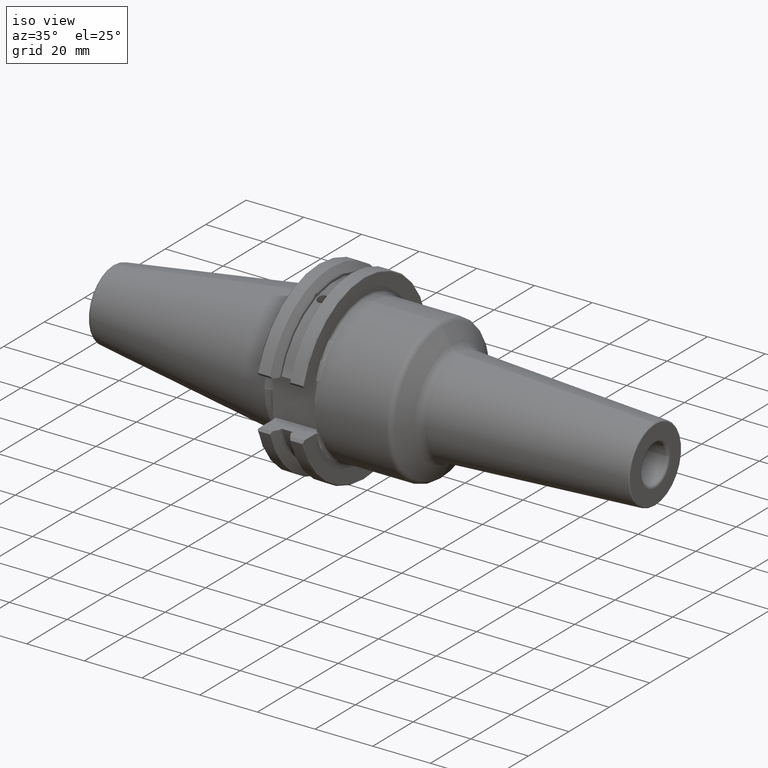
[diagram: clean part render]
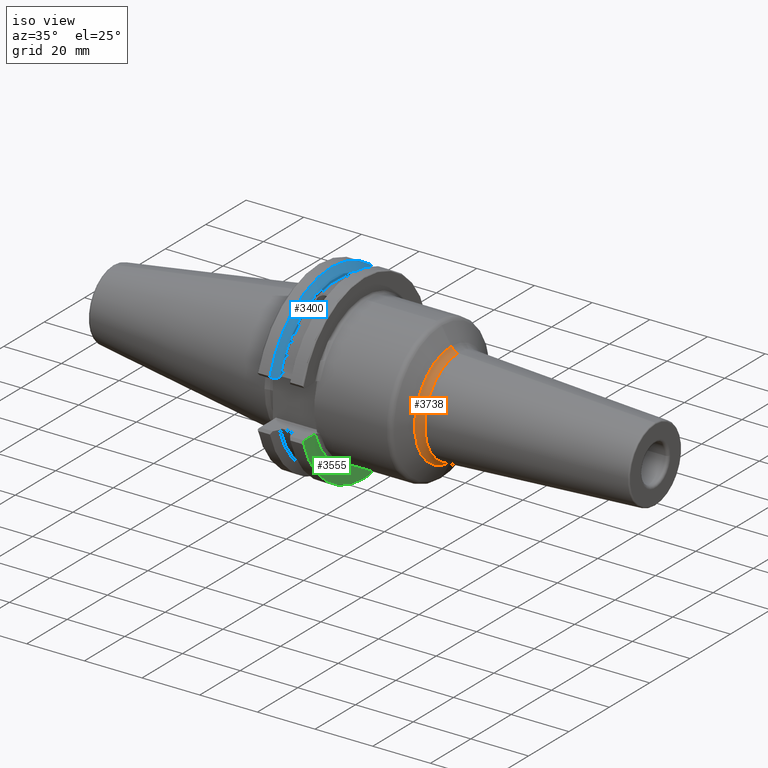
[diagram: same view with three faces highlighted in distinct colors, each labeled with its STEP entity id]
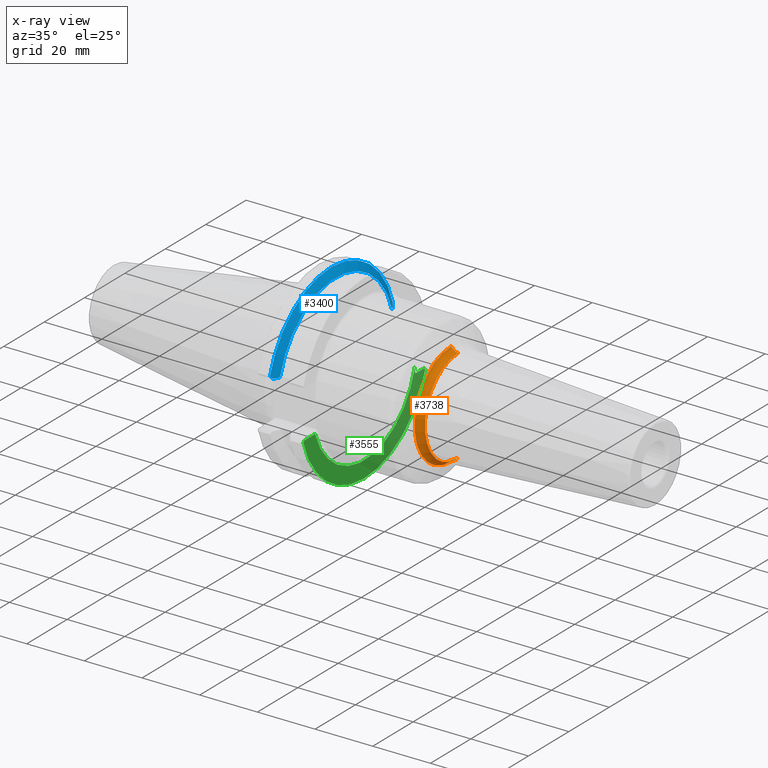
[diagram: x-ray of the same camera — body ghosted, the three highlighted faces saturated]
A machine part, iso view with three faces highlighted in distinct colors.
The next image is the same camera in x-ray (body ghosted, the three faces saturated) — at least one of them is partly hidden behind the body in this view.
Their STEP definitions:

[orange] entity #3738 — the highlighted toroidal blend (fillet) surface has major radius 19.5792 mm and minor (blend) radius 3 mm.
#1218=CARTESIAN_POINT('',(5.178364266190E1,-1.409816707820E-12,
-1.957918483686E1));
#1219=DIRECTION('',(0.E0,1.E0,-7.200837148780E-14));
#1220=DIRECTION('',(-8.660254037845E-1,3.600418574389E-14,4.999999999999E-1));
#1221=AXIS2_PLACEMENT_3D('',#1218,#1219,#1220);
#1223=CARTESIAN_POINT('',(5.178364266190E1,1.407540750620E-12,
1.957918483686E1));
#1224=DIRECTION('',(0.E0,-1.E0,7.189041029143E-14));
#1225=DIRECTION('',(-8.660254037845E-1,-3.594520514571E-14,-4.999999999999E-1));
#1226=AXIS2_PLACEMENT_3D('',#1223,#1224,#1225);
#1228=CARTESIAN_POINT('',(4.918556645054E1,0.E0,0.E0));
#1229=DIRECTION('',(1.E0,0.E0,0.E0));
#1230=DIRECTION('',(0.E0,0.E0,1.E0));
#1231=AXIS2_PLACEMENT_3D('',#1228,#1229,#1230);
#1255=CARTESIAN_POINT('',(5.162663479317E1,0.E0,0.E0));
#1256=DIRECTION('',(1.E0,0.E0,0.E0));
#1257=DIRECTION('',(0.E0,0.E0,1.E0));
#1258=AXIS2_PLACEMENT_3D('',#1255,#1256,#1257);
#2462=CARTESIAN_POINT('',(4.918556645054E1,0.E0,1.807918483686E1));
#2463=CARTESIAN_POINT('',(4.918556645054E1,0.E0,-1.807918483686E1));
#2464=VERTEX_POINT('',#2462);
#2465=VERTEX_POINT('',#2463);
#2466=CARTESIAN_POINT('',(5.162663479317E1,0.E0,1.658329623260E1));
#2467=CARTESIAN_POINT('',(5.162663479317E1,0.E0,-1.658329623260E1));
#2468=VERTEX_POINT('',#2466);
#2469=VERTEX_POINT('',#2467);
#3725=CARTESIAN_POINT('',(5.178364266190E1,0.E0,0.E0));
#3726=DIRECTION('',(1.E0,0.E0,0.E0));
#3727=DIRECTION('',(0.E0,1.660637060092E-2,9.998621047202E-1));
#3728=AXIS2_PLACEMENT_3D('',#3725,#3726,#3727);
#3729=TOROIDAL_SURFACE('',#3728,1.957918483686E1,3.E0);
#3731=ORIENTED_EDGE('',*,*,#3730,.F.);
#3732=ORIENTED_EDGE('',*,*,#3720,.T.);
#3734=ORIENTED_EDGE('',*,*,#3733,.T.);
#3735=ORIENTED_EDGE('',*,*,#3716,.F.);
#3736=EDGE_LOOP('',(#3731,#3732,#3734,#3735));
#3737=FACE_OUTER_BOUND('',#3736,.F.);
#3738=ADVANCED_FACE('',(#3737),#3729,.F.);
#1222=CIRCLE('',#1221,3.E0);
#1227=CIRCLE('',#1226,3.E0);
#1232=CIRCLE('',#1231,1.807918483686E1);
#1259=CIRCLE('',#1258,1.658329623260E1);
#3716=EDGE_CURVE('',#2465,#2469,#1222,.T.);
#3720=EDGE_CURVE('',#2464,#2468,#1227,.T.);
#3730=EDGE_CURVE('',#2464,#2465,#1232,.T.);
#3733=EDGE_CURVE('',#2468,#2469,#1259,.T.);

[blue] entity #3400 — the highlighted conical surface has half-angle 60 deg.
#907=CARTESIAN_POINT('',(9.2191E0,-1.071020574925E1,2.690618531059E1));
#908=CARTESIAN_POINT('',(9.184596827446E0,-1.065939318046E1,2.699073343701E1));
#909=CARTESIAN_POINT('',(9.125439677838E0,-1.054902969653E1,2.714425266799E1));
#910=CARTESIAN_POINT('',(9.066208567552E0,-1.036274638272E1,2.732566638321E1));
#911=CARTESIAN_POINT('',(9.034989583537E0,-1.015597707604E1,2.746084399783E1));
#912=CARTESIAN_POINT('',(9.031672173618E0,-9.938203587957E0,2.754647583445E1));
#913=CARTESIAN_POINT('',(9.052026122412E0,-9.721477302138E0,2.758628796179E1));
#914=CARTESIAN_POINT('',(9.092027819861E0,-9.505150638062E0,2.758827408227E1));
#915=CARTESIAN_POINT('',(9.149180862350E0,-9.290791383580E0,2.755671497778E1));
#916=CARTESIAN_POINT('',(9.194707745176E0,-9.156407639833E0,2.751841880522E1));
#917=CARTESIAN_POINT('',(9.2191E0,-9.090468942703E0,2.749572129551E1));
#919=CARTESIAN_POINT('',(9.2191E0,0.E0,0.E0));
#920=DIRECTION('',(1.E0,0.E0,0.E0));
#921=DIRECTION('',(0.E0,-3.698342240179E-1,9.290977595200E-1));
#922=AXIS2_PLACEMENT_3D('',#919,#920,#921);
#924=CARTESIAN_POINT('',(9.2191E0,-2.777724275660E1,8.19E0));
#925=CARTESIAN_POINT('',(9.100004436185E0,-2.799230184175E1,8.19E0));
#926=CARTESIAN_POINT('',(8.860060979749E0,-2.842518482368E1,8.19E0));
#927=CARTESIAN_POINT('',(8.494908006267E0,-2.908279917371E1,8.19E0));
#928=CARTESIAN_POINT('',(8.247976093806E0,-2.952676307978E1,8.19E0));
#929=CARTESIAN_POINT('',(8.123639020472E0,-2.975013277281E1,8.19E0));
#931=CARTESIAN_POINT('',(7.607990865E0,-3.042082819764E1,9.090418679549E0));
#932=CARTESIAN_POINT('',(7.695827202243E0,-3.030750581618E1,8.938281680694E0));
#933=CARTESIAN_POINT('',(7.869605602884E0,-3.008240105924E1,8.636075164136E0));
#934=CARTESIAN_POINT('',(8.039593216595E0,-2.986037569154E1,8.338002773885E0));
#935=CARTESIAN_POINT('',(8.123639020472E0,-2.975013277281E1,8.19E0));
#937=CARTESIAN_POINT('',(7.607990865E0,0.E0,0.E0));
#938=DIRECTION('',(-1.E0,0.E0,0.E0));
#939=DIRECTION('',(0.E0,-9.581363211856E-1,2.863123993559E-1));
#940=AXIS2_PLACEMENT_3D('',#937,#938,#939);
#942=CARTESIAN_POINT('',(8.123639020472E0,2.975013277281E1,8.19E0));
#943=CARTESIAN_POINT('',(8.039100933267E0,2.986102141980E1,8.338869673775E0));
#944=CARTESIAN_POINT('',(7.868614064527E0,3.008369062664E1,8.637806427737E0));
#945=CARTESIAN_POINT('',(7.695328138794E0,3.030814968477E1,8.939146083944E0));
#946=CARTESIAN_POINT('',(7.607990865E0,3.042082819764E1,9.090418679549E0));
#948=CARTESIAN_POINT('',(8.123639020472E0,2.975013277281E1,8.19E0));
#949=CARTESIAN_POINT('',(8.247937579506E0,2.952683227014E1,8.19E0));
#950=CARTESIAN_POINT('',(8.494818240530E0,2.908296065829E1,8.19E0));
#951=CARTESIAN_POINT('',(8.859971936954E0,2.842534536140E1,8.19E0));
#952=CARTESIAN_POINT('',(9.099966323800E0,2.799237066391E1,8.19E0));
#953=CARTESIAN_POINT('',(9.2191E0,2.777724275660E1,8.19E0));
#955=CARTESIAN_POINT('',(9.2191E0,0.E0,0.E0));
#956=DIRECTION('',(1.E0,0.E0,0.E0));
#957=DIRECTION('',(0.E0,9.591762530767E-1,2.828089735736E-1));
#958=AXIS2_PLACEMENT_3D('',#955,#956,#957);
#2074=CARTESIAN_POINT('',(9.2191E0,2.777724275660E1,8.19E0));
#2076=VERTEX_POINT('',#2074);
#2090=CARTESIAN_POINT('',(9.2191E0,-2.777724275660E1,8.19E0));
#2092=VERTEX_POINT('',#2090);
#2106=VERTEX_POINT('',#942);
#2107=VERTEX_POINT('',#946);
#2116=VERTEX_POINT('',#931);
#2117=VERTEX_POINT('',#935);
#2344=VERTEX_POINT('',#907);
#2345=VERTEX_POINT('',#917);
#3378=CARTESIAN_POINT('',(8.413545432500E0,0.E0,0.E0));
#3379=DIRECTION('',(-1.E0,0.E0,0.E0));
#3380=DIRECTION('',(0.E0,0.E0,-1.E0));
#3381=AXIS2_PLACEMENT_3D('',#3378,#3379,#3380);
#3382=CONICAL_SURFACE('',#3381,3.035473856082E1,6.E1);
#3383=ORIENTED_EDGE('',*,*,#3235,.F.);
#3385=ORIENTED_EDGE('',*,*,#3384,.T.);
#3387=ORIENTED_EDGE('',*,*,#3386,.T.);
#3389=ORIENTED_EDGE('',*,*,#3388,.F.);
#3391=ORIENTED_EDGE('',*,*,#3390,.T.);
#3393=ORIENTED_EDGE('',*,*,#3392,.F.);
#3395=ORIENTED_EDGE('',*,*,#3394,.T.);
#3397=ORIENTED_EDGE('',*,*,#3396,.T.);
#3398=EDGE_LOOP('',(#3383,#3385,#3387,#3389,#3391,#3393,#3395,#3397));
#3399=FACE_OUTER_BOUND('',#3398,.F.);
#3400=ADVANCED_FACE('',(#3399),#3382,.T.);
#918=B_SPLINE_CURVE_WITH_KNOTS('',3,(#907,#908,#909,#910,#911,#912,#913,#914,
#915,#916,#917),.UNSPECIFIED.,.F.,.F.,(4,1,1,1,1,1,1,1,4),(0.E0,1.25E-1,2.5E-1,
3.75E-1,5.E-1,6.25E-1,7.5E-1,8.75E-1,1.E0),.UNSPECIFIED.);
#923=CIRCLE('',#922,2.895947712164E1);
#930=B_SPLINE_CURVE_WITH_KNOTS('',3,(#924,#925,#926,#927,#928,#929),
.UNSPECIFIED.,.F.,.F.,(4,1,1,4),(0.E0,3.333333333333E-1,6.666666666667E-1,1.E0),
.UNSPECIFIED.);
#936=B_SPLINE_CURVE_WITH_KNOTS('',3,(#931,#932,#933,#934,#935),.UNSPECIFIED.,
.F.,.F.,(4,1,4),(0.E0,5.E-1,1.E0),.UNSPECIFIED.);
#941=CIRCLE('',#940,3.175E1);
#947=B_SPLINE_CURVE_WITH_KNOTS('',3,(#942,#943,#944,#945,#946),.UNSPECIFIED.,
.F.,.F.,(4,1,4),(0.E0,5.E-1,1.E0),.UNSPECIFIED.);
#954=B_SPLINE_CURVE_WITH_KNOTS('',3,(#948,#949,#950,#951,#952,#953),
.UNSPECIFIED.,.F.,.F.,(4,1,1,4),(0.E0,3.333333333333E-1,6.666666666667E-1,1.E0),
.UNSPECIFIED.);
#959=CIRCLE('',#958,2.895947712164E1);
#3235=EDGE_CURVE('',#2344,#2345,#918,.T.);
#3384=EDGE_CURVE('',#2344,#2092,#923,.T.);
#3386=EDGE_CURVE('',#2092,#2117,#930,.T.);
#3388=EDGE_CURVE('',#2116,#2117,#936,.T.);
#3390=EDGE_CURVE('',#2116,#2107,#941,.T.);
#3392=EDGE_CURVE('',#2106,#2107,#947,.T.);
#3394=EDGE_CURVE('',#2106,#2076,#954,.T.);
#3396=EDGE_CURVE('',#2076,#2345,#959,.T.);

[green] entity #3555 — the highlighted planar face has unit normal (-1, 0, 0).
#996=DIRECTION('',(0.E0,1.E0,0.E0));
#997=VECTOR('',#996,5.337300081788E0);
#998=CARTESIAN_POINT('',(1.905E1,-2.975013277281E1,-8.19E0));
#999=LINE('',#998,#997);
#1072=CARTESIAN_POINT('',(1.905E1,0.E0,0.E0));
#1073=DIRECTION('',(-1.E0,0.E0,0.E0));
#1074=DIRECTION('',(0.E0,9.708742523809E-1,-2.395896201087E-1));
#1075=AXIS2_PLACEMENT_3D('',#1072,#1073,#1074);
#1434=DIRECTION('',(0.E0,-1.150784187871E-5,-9.999999999338E-1));
#1435=VECTOR('',#1434,1.520606765188E0);
#1436=CARTESIAN_POINT('',(1.905E1,2.500001749890E1,-6.169393234913E0));
#1437=LINE('',#1436,#1435);
#1703=DIRECTION('',(0.E0,1.E0,0.E0));
#1704=VECTOR('',#1703,4.250132772813E0);
#1705=CARTESIAN_POINT('',(1.905E1,2.55E1,-8.19E0));
#1706=LINE('',#1705,#1704);
#1723=DIRECTION('',(0.E0,7.071067811865E-1,-7.071067811866E-1));
#1724=VECTOR('',#1723,7.071067811866E-1);
#1725=CARTESIAN_POINT('',(1.905E1,2.5E1,-7.69E0));
#1726=LINE('',#1725,#1724);
#1948=CARTESIAN_POINT('',(1.905E1,0.E0,0.E0));
#1949=DIRECTION('',(1.E0,0.E0,0.E0));
#1950=DIRECTION('',(0.E0,-9.604246720989E-1,-2.785398521286E-1));
#1951=AXIS2_PLACEMENT_3D('',#1948,#1949,#1950);
#1970=DIRECTION('',(0.E0,-5.973640433790E-1,8.019701987468E-1));
#1971=VECTOR('',#1970,6.967374391763E-1);
#1972=CARTESIAN_POINT('',(1.905E1,3.016633866665E1,-8.748762662571E0));
#1973=LINE('',#1972,#1971);
#1981=DIRECTION('',(0.E0,-5.973640433789E-1,-8.019701987468E-1));
#1982=VECTOR('',#1981,6.967374391763E-1);
#1983=CARTESIAN_POINT('',(1.905E1,-2.975013277281E1,-8.19E0));
#1984=LINE('',#1983,#1982);
#2366=CARTESIAN_POINT('',(1.905E1,2.55E1,-8.19E0));
#2367=CARTESIAN_POINT('',(1.905E1,2.975013277281E1,-8.19E0));
#2368=VERTEX_POINT('',#2366);
#2369=VERTEX_POINT('',#2367);
#2372=CARTESIAN_POINT('',(1.905E1,3.016633866665E1,-8.748762662571E0));
#2373=VERTEX_POINT('',#2372);
#2378=CARTESIAN_POINT('',(1.905E1,-2.975013277281E1,-8.19E0));
#2379=CARTESIAN_POINT('',(1.905E1,-3.016633866665E1,-8.748762662571E0));
#2380=VERTEX_POINT('',#2378);
#2381=VERTEX_POINT('',#2379);
#2384=CARTESIAN_POINT('',(1.905E1,2.5E1,-7.69E0));
#2385=VERTEX_POINT('',#2384);
#2444=CARTESIAN_POINT('',(1.905E1,2.500001749890E1,-6.169393234913E0));
#2445=VERTEX_POINT('',#2444);
#2448=CARTESIAN_POINT('',(1.905E1,-2.441283269103E1,-8.19E0));
#2449=VERTEX_POINT('',#2448);
#3533=CARTESIAN_POINT('',(1.905E1,-5.E1,-5.E1));
#3534=DIRECTION('',(-1.E0,0.E0,0.E0));
#3535=DIRECTION('',(0.E0,0.E0,1.E0));
#3536=AXIS2_PLACEMENT_3D('',#3533,#3534,#3535);
#3537=PLANE('',#3536);
#3539=ORIENTED_EDGE('',*,*,#3538,.F.);
#3541=ORIENTED_EDGE('',*,*,#3540,.T.);
#3543=ORIENTED_EDGE('',*,*,#3542,.T.);
#3545=ORIENTED_EDGE('',*,*,#3544,.T.);
#3547=ORIENTED_EDGE('',*,*,#3546,.F.);
#3549=ORIENTED_EDGE('',*,*,#3548,.F.);
#3551=ORIENTED_EDGE('',*,*,#3550,.F.);
#3552=ORIENTED_EDGE('',*,*,#3464,.T.);
#3553=EDGE_LOOP('',(#3539,#3541,#3543,#3545,#3547,#3549,#3551,#3552));
#3554=FACE_OUTER_BOUND('',#3553,.F.);
#3555=ADVANCED_FACE('',(#3554),#3537,.F.);
#1076=CIRCLE('',#1075,2.575E1);
#1952=CIRCLE('',#1951,3.140937498068E1);
#3464=EDGE_CURVE('',#2380,#2449,#999,.T.);
#3538=EDGE_CURVE('',#2445,#2449,#1076,.T.);
#3540=EDGE_CURVE('',#2445,#2385,#1437,.T.);
#3542=EDGE_CURVE('',#2385,#2368,#1726,.T.);
#3544=EDGE_CURVE('',#2368,#2369,#1706,.T.);
#3546=EDGE_CURVE('',#2373,#2369,#1973,.T.);
#3548=EDGE_CURVE('',#2381,#2373,#1952,.T.);
#3550=EDGE_CURVE('',#2380,#2381,#1984,.T.);